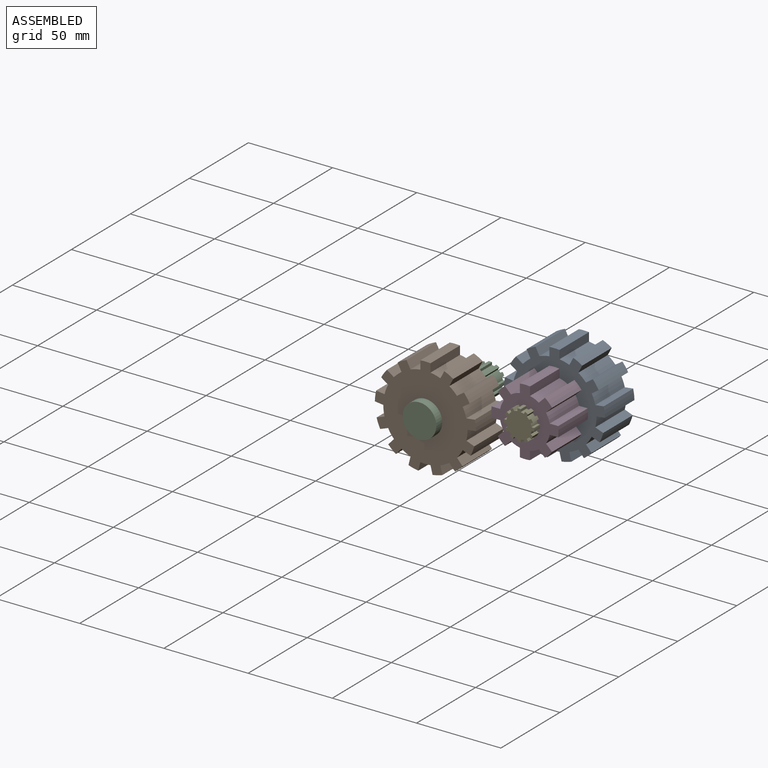
[diagram: assembled view]
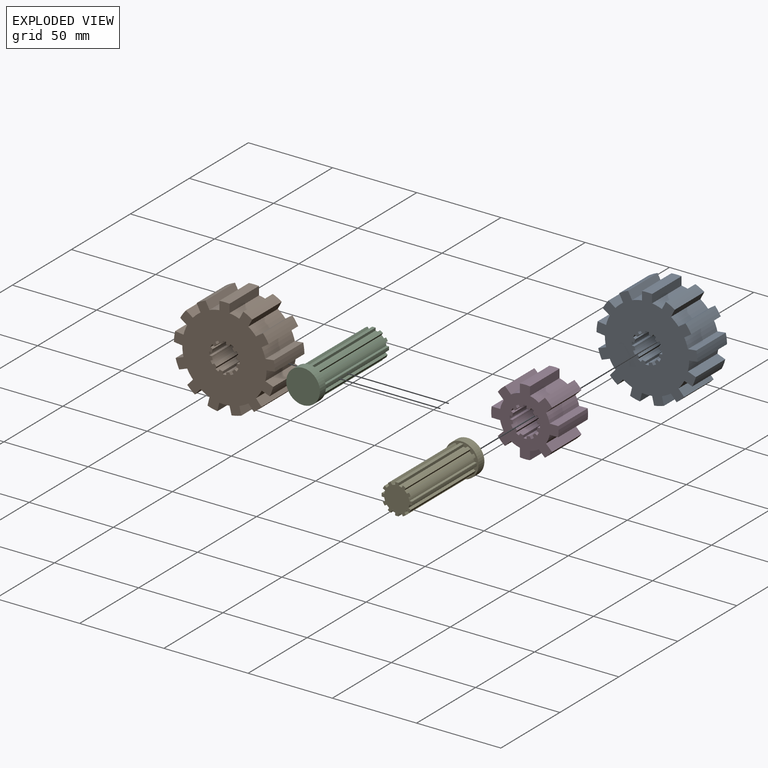
[diagram: exploded view]
GUIDED TOUR — MATED ASSEMBLY (Onshape document 391419834dc7ba93fd07b7cd, AutoMate assembly 391419834dc7ba93fd07b7cd_708b872a6b882f5753964bcb_778fc73220e6f7a36c3dd1d7_default)

This assembly has 5 components, labeled P0..P4 below (a component is one placed occurrence of a part; the same part can appear more than once), held together by 3 mates. A mate is a constraint between two components; its type names the relative motion it leaves free:
  FASTENED — locks the two components together rigidly (no relative motion).
Axis/direction vectors are unit vectors and 'through' points are millimeter coordinates, both in the assembly's world frame.

MATES
  1. FASTENED "Fastened 1": P0 <-> P4, direction (0.000, 1.000, 0.000) through (3.16, 30.12, 6.80) mm
  2. FASTENED "Fastened 2": P3 <-> P0, direction (0.000, 1.000, 0.000) through (3.16, 5.12, 6.80) mm
  3. FASTENED "Fastened 1": P1 <-> P2, direction (0.000, -1.000, 0.000) through (-58.75, -15.80, -8.94) mm

ASSEMBLY ORDER
  1. P3 — the base component [order verified]
  2. P4 [order verified]
  3. P0 [order verified]
  4. P1 [order verified]
  5. P2 [order verified]
Order-tag legend:
  [order verified] — this step's position reverses a verified removal order: the component was checked to insert without passing through the ones already placed.

Of the 5 components, 5 carry the full construction recipe — the FeatureScript program that regenerates the part's solid from scratch; the rest are supplied as boundary geometry only.
Each toured component is shown spotlighted twice — in the assembled view, then in the exploded view, where a leader line traces a displaced component back to its assembled socket (saturated green if recipe-attached, orange if geometry-only; every other component desaturated gray) — followed by its recipe or geometry summary and the mates that hold it.
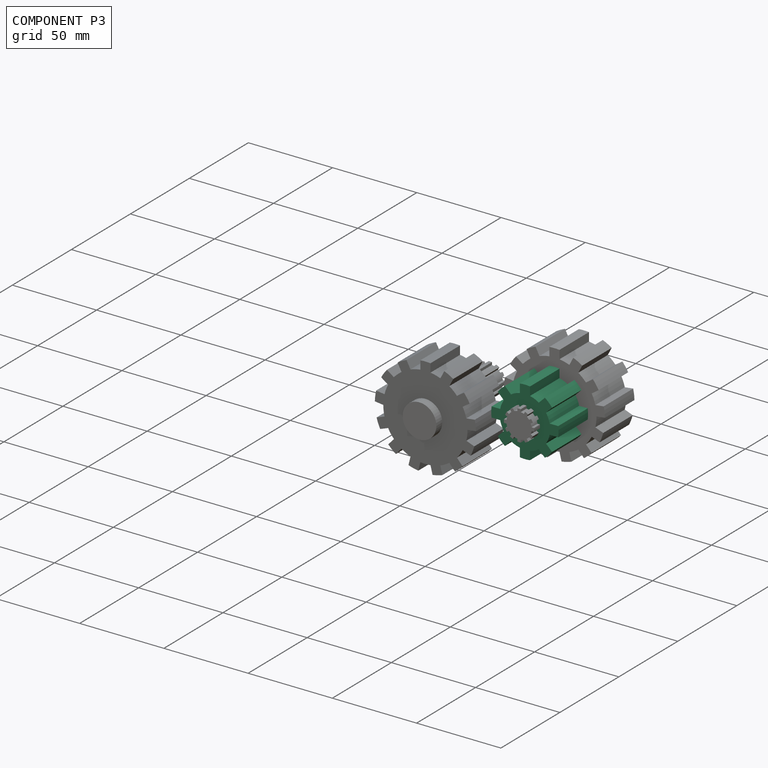
[diagram: component P3 — assembled]
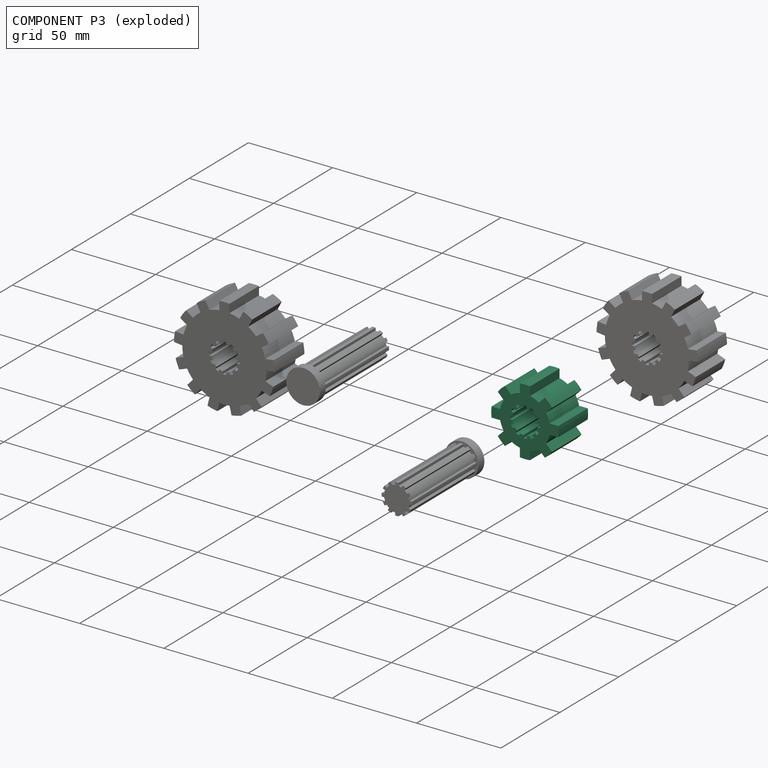
[diagram: component P3 — exploded]
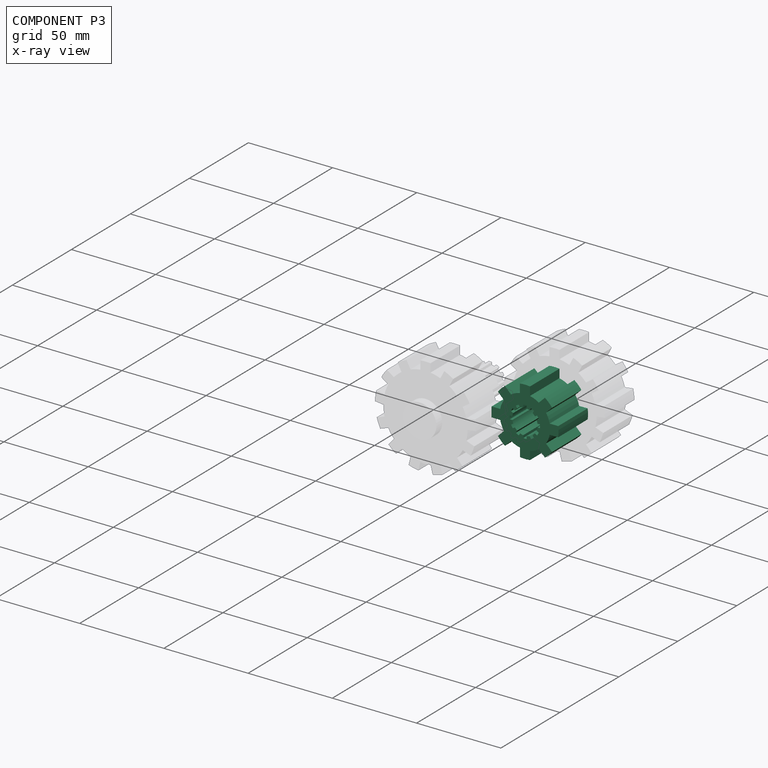
[diagram: component P3 — x-ray view]
COMPONENT P3 — recipe-attached (CADFS 00593386, mesh-verified: the recipe's output STEP matches this component's geometry to below the mesh-comparison resolution (tessellation chordal tolerance ~0.0927 mm)).
Held by: FASTENED mate "Fastened 2" to P0.
Construction recipe (FeatureScript — the CAD program that rebuilds this solid; sketch coordinates are in the units given by the * unit suffixes, e.g. mm):

FeatureScript 1511;
import(path : "onshape/std/geometry.fs", version : "1511.0");
import(path : "onshape/std/common.fs", version : "1511.0");
const mm = millimeter;
const VERTEX = EntityType.VERTEX;
const EDGE = EntityType.EDGE;
const FACE = EntityType.FACE;
const BODY = EntityType.BODY;
function v(x, y){return vector(x, y);}
function OD(order){return orderDisambiguation(order);}
function OSD(set){return originalSetDisambiguation(set);}
function TD(topology){return topologyDisambiguation(topology);}
function TDD(query){return trueDependencyDisambiguation(query);}
function sQuery(a, b, c) {return sketchEntityQuery(a, b, c);}

annotation { "Feature Type Name" : "Feature", "Feature Type Description" : "" }
export const myFeature = defineFeature(function(context is Context, id is Id, definition is map)
    precondition{}
    {
        {
            var Q0;
            Q0=qCreatedBy(makeId("Front.planeOp"),FACE);
            var sketch = newSketch(context, id + "F0", { "sketchPlane" : qUnion([Q0])});
            skArc(sketch, "E0", {"start": v(-4.58, 5.94) * mm, "mid": v(-5.3, 5.3) * mm, "end": v(-5.94, 4.58) * mm});
            skArc(sketch, "E1", {"start": v(1, 8.94) * mm, "mid": v(0, 9) * mm, "end": v(-1, 8.94) * mm});
            skLineSegment(sketch, "E2", {"start": v(-1, 8.94) * mm, "end": v(-1, 7.43) * mm});
            skLineSegment(sketch, "E3", {"start": v(1, 7.43) * mm, "end": v(1, 8.94) * mm});
            skArc(sketch, "E4.1.0", {"start": v(-3.6, 8.25) * mm, "mid": v(-4.5, 7.8) * mm, "end": v(-5.34, 7.25) * mm});
            skLineSegment(sketch, "E4.1.1", {"start": v(-2.85, 6.94) * mm, "end": v(-3.6, 8.25) * mm});
            skLineSegment(sketch, "E4.1.2", {"start": v(-5.34, 7.25) * mm, "end": v(-4.58, 5.94) * mm});
            skArc(sketch, "E4.2.0", {"start": v(-7.25, 5.34) * mm, "mid": v(-7.8, 4.5) * mm, "end": v(-8.25, 3.6) * mm});
            skLineSegment(sketch, "E4.2.1", {"start": v(-5.94, 4.58) * mm, "end": v(-7.25, 5.34) * mm});
            skLineSegment(sketch, "E4.2.2", {"start": v(-8.25, 3.6) * mm, "end": v(-6.94, 2.85) * mm});
            skArc(sketch, "E4.3.0", {"start": v(-8.94, 1) * mm, "mid": v(-9, 0) * mm, "end": v(-8.94, -1) * mm});
            skLineSegment(sketch, "E4.3.1", {"start": v(-7.43, 1) * mm, "end": v(-8.94, 1) * mm});
            skLineSegment(sketch, "E4.3.2", {"start": v(-8.94, -1) * mm, "end": v(-7.43, -1) * mm});
            skArc(sketch, "E4.4.0", {"start": v(-8.25, -3.6) * mm, "mid": v(-7.8, -4.5) * mm, "end": v(-7.25, -5.34) * mm});
            skLineSegment(sketch, "E4.4.1", {"start": v(-6.94, -2.85) * mm, "end": v(-8.25, -3.6) * mm});
            skLineSegment(sketch, "E4.4.2", {"start": v(-7.25, -5.34) * mm, "end": v(-5.94, -4.58) * mm});
            skArc(sketch, "E4.5.0", {"start": v(-5.34, -7.25) * mm, "mid": v(-4.5, -7.8) * mm, "end": v(-3.6, -8.25) * mm});
            skLineSegment(sketch, "E4.5.1", {"start": v(-4.58, -5.94) * mm, "end": v(-5.34, -7.25) * mm});
            skLineSegment(sketch, "E4.5.2", {"start": v(-3.6, -8.25) * mm, "end": v(-2.85, -6.94) * mm});
            skArc(sketch, "E4.6.0", {"start": v(-1, -8.94) * mm, "mid": v(0, -9) * mm, "end": v(1, -8.94) * mm});
            skLineSegment(sketch, "E4.6.1", {"start": v(-1, -7.43) * mm, "end": v(-1, -8.94) * mm});
            skLineSegment(sketch, "E4.6.2", {"start": v(1, -8.94) * mm, "end": v(1, -7.43) * mm});
            skArc(sketch, "E4.7.0", {"start": v(3.6, -8.25) * mm, "mid": v(4.5, -7.8) * mm, "end": v(5.34, -7.25) * mm});
            skLineSegment(sketch, "E4.7.1", {"start": v(2.85, -6.94) * mm, "end": v(3.6, -8.25) * mm});
            skLineSegment(sketch, "E4.7.2", {"start": v(5.34, -7.25) * mm, "end": v(4.58, -5.94) * mm});
            skArc(sketch, "E4.8.0", {"start": v(7.25, -5.34) * mm, "mid": v(7.8, -4.5) * mm, "end": v(8.25, -3.6) * mm});
            skLineSegment(sketch, "E4.8.1", {"start": v(5.94, -4.58) * mm, "end": v(7.25, -5.34) * mm});
            skLineSegment(sketch, "E4.8.2", {"start": v(8.25, -3.6) * mm, "end": v(6.94, -2.85) * mm});
            skArc(sketch, "E4.9.0", {"start": v(8.94, -1) * mm, "mid": v(9, 0) * mm, "end": v(8.94, 1) * mm});
            skLineSegment(sketch, "E4.9.1", {"start": v(7.43, -1) * mm, "end": v(8.94, -1) * mm});
            skLineSegment(sketch, "E4.9.2", {"start": v(8.94, 1) * mm, "end": v(7.43, 1) * mm});
            skArc(sketch, "E4.10.0", {"start": v(8.25, 3.6) * mm, "mid": v(7.8, 4.5) * mm, "end": v(7.25, 5.34) * mm});
            skLineSegment(sketch, "E4.10.1", {"start": v(6.94, 2.85) * mm, "end": v(8.25, 3.6) * mm});
            skLineSegment(sketch, "E4.10.2", {"start": v(7.25, 5.34) * mm, "end": v(5.94, 4.58) * mm});
            skArc(sketch, "E4.11.0", {"start": v(5.34, 7.25) * mm, "mid": v(4.5, 7.8) * mm, "end": v(3.6, 8.25) * mm});
            skLineSegment(sketch, "E4.11.1", {"start": v(4.58, 5.94) * mm, "end": v(5.34, 7.25) * mm});
            skLineSegment(sketch, "E4.11.2", {"start": v(3.6, 8.25) * mm, "end": v(2.85, 6.94) * mm});
            skArc(sketch, "E5.trimOffspring", {"start": v(-1, 7.43) * mm, "mid": v(-1.94, 7.24) * mm, "end": v(-2.85, 6.94) * mm});
            skArc(sketch, "E6.trimOffspring", {"start": v(2.85, 6.94) * mm, "mid": v(1.94, 7.24) * mm, "end": v(1, 7.43) * mm});
            skArc(sketch, "E7.trimOffspring", {"start": v(5.94, 4.58) * mm, "mid": v(5.3, 5.3) * mm, "end": v(4.58, 5.94) * mm});
            skArc(sketch, "E8.trimOffspring", {"start": v(7.43, 1) * mm, "mid": v(7.24, 1.94) * mm, "end": v(6.94, 2.85) * mm});
            skArc(sketch, "E9.trimOffspring", {"start": v(6.94, -2.85) * mm, "mid": v(7.24, -1.94) * mm, "end": v(7.43, -1) * mm});
            skArc(sketch, "E10.trimOffspring", {"start": v(4.58, -5.94) * mm, "mid": v(5.3, -5.3) * mm, "end": v(5.94, -4.58) * mm});
            skArc(sketch, "E11.trimOffspring", {"start": v(1, -7.43) * mm, "mid": v(1.94, -7.24) * mm, "end": v(2.85, -6.94) * mm});
            skArc(sketch, "E12.trimOffspring", {"start": v(-2.85, -6.94) * mm, "mid": v(-1.94, -7.24) * mm, "end": v(-1, -7.43) * mm});
            skArc(sketch, "E13.trimOffspring", {"start": v(-5.94, -4.58) * mm, "mid": v(-5.3, -5.3) * mm, "end": v(-4.58, -5.94) * mm});
            skArc(sketch, "E14.trimOffspring", {"start": v(-7.43, -1) * mm, "mid": v(-7.24, -1.94) * mm, "end": v(-6.94, -2.85) * mm});
            skArc(sketch, "E15.trimOffspring", {"start": v(-6.94, 2.85) * mm, "mid": v(-7.24, 1.94) * mm, "end": v(-7.43, 1) * mm});
            skSolve(sketch);
        }
        {
            var Q0;
            Q0=qCreatedBy(makeId("Front.planeOp"),FACE);
            var sketch = newSketch(context, id + "F1", { "sketchPlane" : qUnion([Q0])});
            skCircle(sketch, "E16", {"center": v(0, 0) * mm, "radius": 15 * mm});
            skLineSegment(sketch, "E17", {"start": v(-3, 19.77) * mm, "end": v(-3, 14.7) * mm});
            skLineSegment(sketch, "E18", {"start": v(3, 14.7) * mm, "end": v(3, 19.77) * mm});
            skArc(sketch, "E19", {"start": v(3, 19.77) * mm, "mid": v(0, 20) * mm, "end": v(-3, 19.77) * mm});
            skArc(sketch, "E20.1.0", {"start": v(-11.86, 16.1) * mm, "mid": v(-14.14, 14.14) * mm, "end": v(-16.1, 11.86) * mm});
            skLineSegment(sketch, "E20.1.1", {"start": v(-8.27, 12.51) * mm, "end": v(-11.86, 16.1) * mm});
            skLineSegment(sketch, "E20.1.2", {"start": v(-16.1, 11.86) * mm, "end": v(-12.51, 8.27) * mm});
            skArc(sketch, "E20.2.0", {"start": v(-19.77, 3) * mm, "mid": v(-20, 0) * mm, "end": v(-19.77, -3) * mm});
            skLineSegment(sketch, "E20.2.1", {"start": v(-14.7, 3) * mm, "end": v(-19.77, 3) * mm});
            skLineSegment(sketch, "E20.2.2", {"start": v(-19.77, -3) * mm, "end": v(-14.7, -3) * mm});
            skArc(sketch, "E21.3.3.0", {"start": v(-16.1, -11.86) * mm, "mid": v(-14.14, -14.14) * mm, "end": v(-11.86, -16.1) * mm});
            skLineSegment(sketch, "E21.4.3.0", {"start": v(-12.51, -8.27) * mm, "end": v(-16.1, -11.86) * mm});
            skLineSegment(sketch, "E21.7.3.0", {"start": v(-11.86, -16.1) * mm, "end": v(-8.27, -12.51) * mm});
            skArc(sketch, "E21.3.4.0", {"start": v(-3, -19.77) * mm, "mid": v(0, -20) * mm, "end": v(3, -19.77) * mm});
            skLineSegment(sketch, "E21.4.4.0", {"start": v(-3, -14.7) * mm, "end": v(-3, -19.77) * mm});
            skLineSegment(sketch, "E21.7.4.0", {"start": v(3, -19.77) * mm, "end": v(3, -14.7) * mm});
            skArc(sketch, "E21.3.5.0", {"start": v(11.86, -16.1) * mm, "mid": v(14.14, -14.14) * mm, "end": v(16.1, -11.86) * mm});
            skLineSegment(sketch, "E21.4.5.0", {"start": v(8.27, -12.51) * mm, "end": v(11.86, -16.1) * mm});
            skLineSegment(sketch, "E21.7.5.0", {"start": v(16.1, -11.86) * mm, "end": v(12.51, -8.27) * mm});
            skArc(sketch, "E22.3.6.0", {"start": v(19.77, -3) * mm, "mid": v(20, 0) * mm, "end": v(19.77, 3) * mm});
            skLineSegment(sketch, "E22.4.6.0", {"start": v(14.7, -3) * mm, "end": v(19.77, -3) * mm});
            skLineSegment(sketch, "E22.7.6.0", {"start": v(19.77, 3) * mm, "end": v(14.7, 3) * mm});
            skArc(sketch, "E23.3.7.0", {"start": v(16.1, 11.86) * mm, "mid": v(14.14, 14.14) * mm, "end": v(11.86, 16.1) * mm});
            skLineSegment(sketch, "E23.4.7.0", {"start": v(12.51, 8.27) * mm, "end": v(16.1, 11.86) * mm});
            skLineSegment(sketch, "E23.7.7.0", {"start": v(11.86, 16.1) * mm, "end": v(8.27, 12.51) * mm});
            skSolve(sketch);
        }
        {
            var Q0;
            {var subQ0=sQuery(id+"F1.wireOp",EDGE,"E16");var subQ8=makeQuery(id+"F1.imprint","INTERSECT",VERTEX,{"derivedFrom":[subQ0,sQuery(id+"F1.wireOp",EDGE,"E22.7.6.0")]});Q0=makeQuery(id+"F1.imprint","IMPRINT",FACE,{"disambiguationData":[TD([[makeQuery(id+"F1.imprint","IMPRINT",EDGE,{"disambiguationData":[TD([[subQ8,-1.0]])],"derivedFrom":subQ0}),1.0]])]});}
            var Q1;
            Q1=makeQuery(id+"F1.imprint","IMPRINT",FACE,{"disambiguationData":[TD([[makeQuery(id+"F1.imprint","IMPRINT",EDGE,{"derivedFrom":sQuery(id+"F1.wireOp",EDGE,"E20.1.0")}),1.0]])]});
            var Q2;
            Q2=makeQuery(id+"F1.imprint","IMPRINT",FACE,{"disambiguationData":[TD([[makeQuery(id+"F1.imprint","IMPRINT",EDGE,{"derivedFrom":sQuery(id+"F1.wireOp",EDGE,"E20.2.0")}),1.0]])]});
            var Q3;
            Q3=makeQuery(id+"F1.imprint","IMPRINT",FACE,{"disambiguationData":[TD([[makeQuery(id+"F1.imprint","IMPRINT",EDGE,{"derivedFrom":sQuery(id+"F1.wireOp",EDGE,"E21.3.3.0")}),1.0]])]});
            var Q4;
            Q4=makeQuery(id+"F1.imprint","IMPRINT",FACE,{"disambiguationData":[TD([[makeQuery(id+"F1.imprint","IMPRINT",EDGE,{"derivedFrom":sQuery(id+"F1.wireOp",EDGE,"E21.3.4.0")}),1.0]])]});
            var Q5;
            Q5=makeQuery(id+"F1.imprint","IMPRINT",FACE,{"disambiguationData":[TD([[makeQuery(id+"F1.imprint","IMPRINT",EDGE,{"derivedFrom":sQuery(id+"F1.wireOp",EDGE,"E21.3.5.0")}),1.0]])]});
            var Q6;
            Q6=makeQuery(id+"F1.imprint","IMPRINT",FACE,{"disambiguationData":[TD([[makeQuery(id+"F1.imprint","IMPRINT",EDGE,{"derivedFrom":sQuery(id+"F1.wireOp",EDGE,"E22.3.6.0")}),1.0]])]});
            var Q7;
            Q7=makeQuery(id+"F1.imprint","IMPRINT",FACE,{"disambiguationData":[TD([[makeQuery(id+"F1.imprint","IMPRINT",EDGE,{"derivedFrom":sQuery(id+"F1.wireOp",EDGE,"E23.3.7.0")}),1.0]])]});
            var Q8;
            {var subQ0=sQuery(id+"F1.wireOp",EDGE,"E17");Q8=makeQuery(id+"F1.imprint","IMPRINT",FACE,{"disambiguationData":[TD([[makeQuery(id+"F1.imprint","IMPRINT",EDGE,{"derivedFrom":subQ0}),1.0]])]});}
            extrude(context, id + "F2", {"entities" : qUnion([Q0, Q1, Q2, Q3, Q4, Q5, Q6, Q7, Q8]), "depth" : 25 * mm, "offsetDistance" : 25 * mm});
        }
        {
            var Q0;
            Q0=makeQuery(id+"F0.imprint","IMPRINT",FACE,{"disambiguationData":[TD([[makeQuery(id+"F0.imprint","IMPRINT",EDGE,{"derivedFrom":sQuery(id+"F0.wireOp",EDGE,"E0")}),1.0]])]});
            extrude(context, id + "F3", {"entities" : qUnion([Q0]), "operationType" : NewBodyOperationType.REMOVE, "depth" : 25 * mm, "offsetDistance" : 25 * mm});
        }
    });
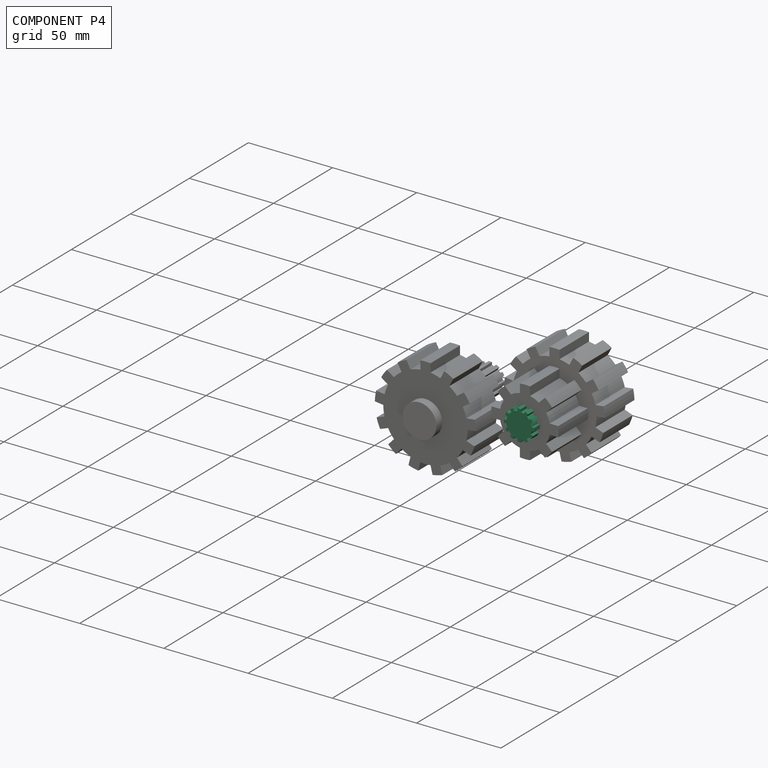
[diagram: component P4 — assembled]
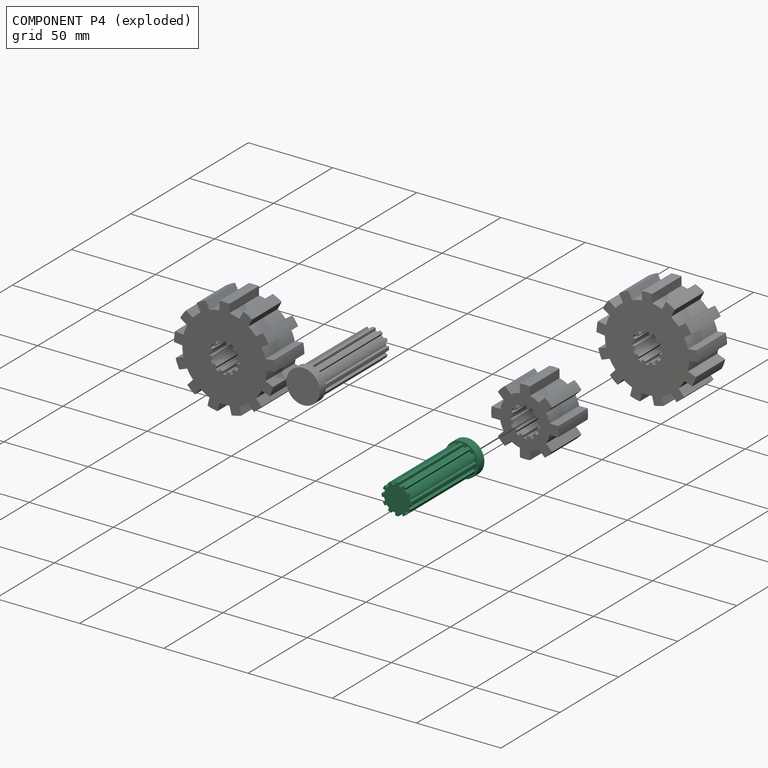
[diagram: component P4 — exploded]
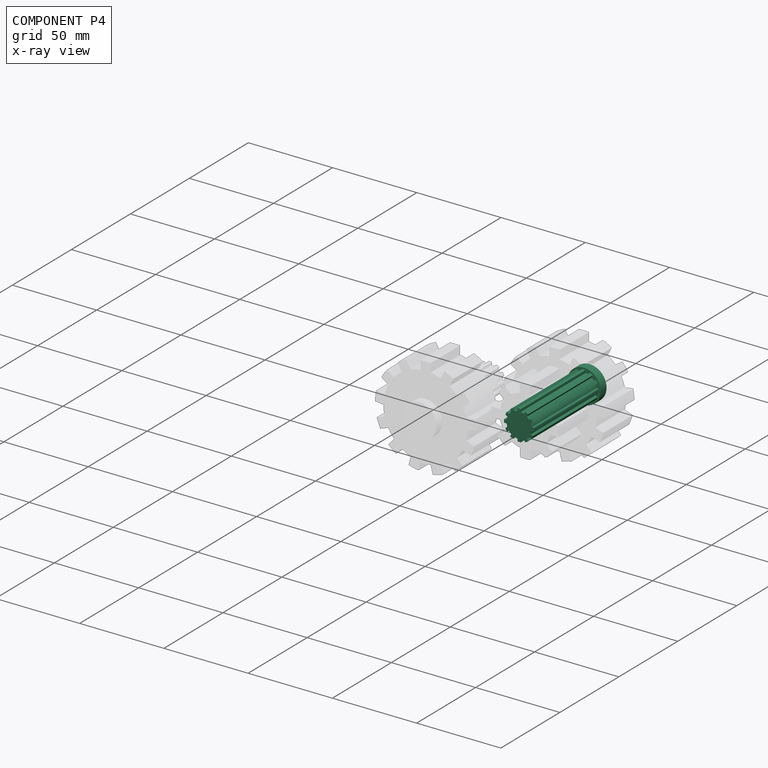
[diagram: component P4 — x-ray view]
COMPONENT P4 — same part as P2 (CADFS 00593384); its construction recipe is shown at P2.
Held by: FASTENED mate "Fastened 1" to P0.
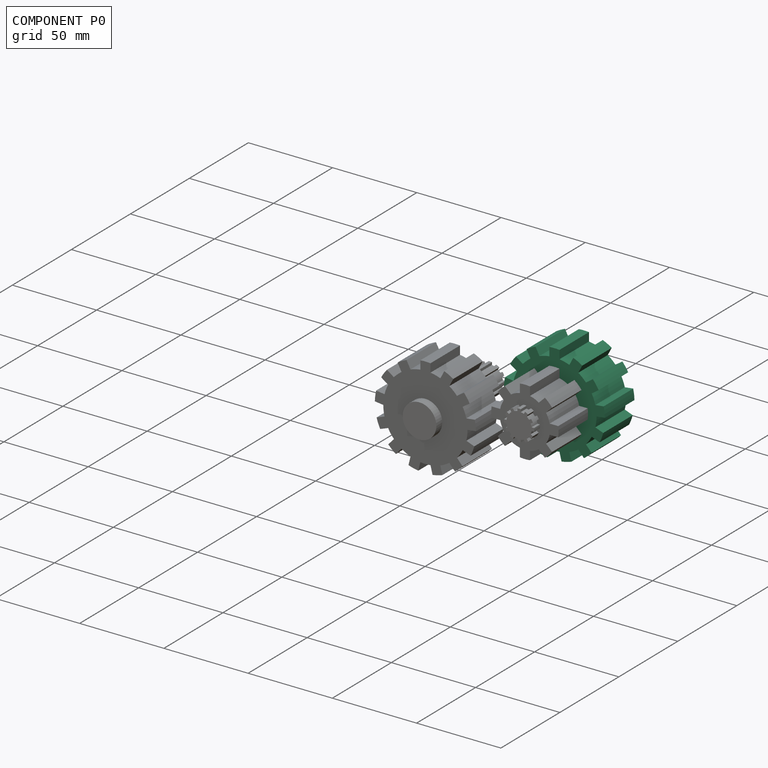
[diagram: component P0 — assembled]
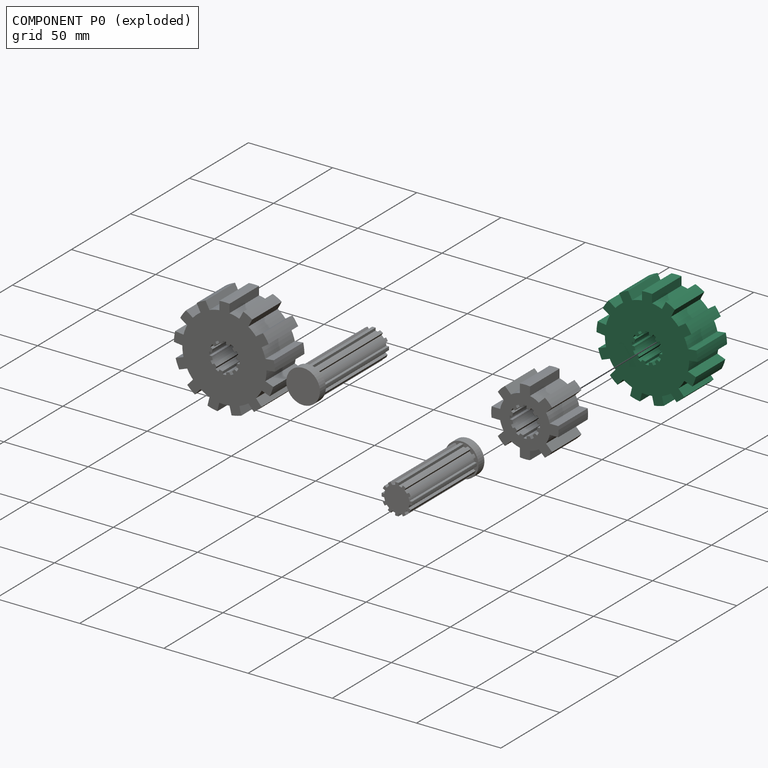
[diagram: component P0 — exploded]
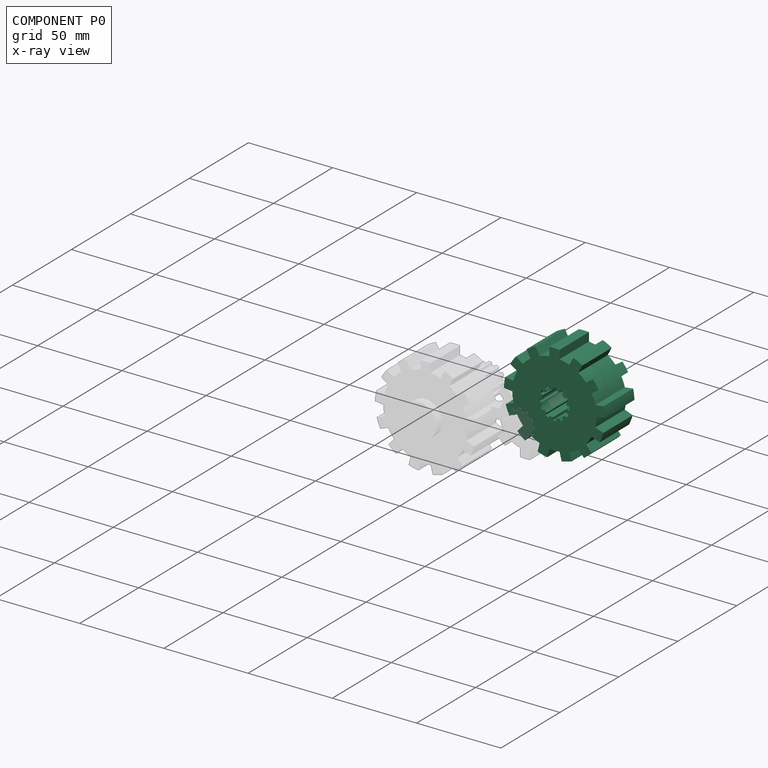
[diagram: component P0 — x-ray view]
COMPONENT P0 — recipe-attached (CADFS 00593385, mesh-verified: the recipe's output STEP matches this component's geometry to below the mesh-comparison resolution (tessellation chordal tolerance ~0.132 mm)).
Held by: FASTENED mate "Fastened 1" to P4; FASTENED mate "Fastened 2" to P3.
Construction recipe (FeatureScript — the CAD program that rebuilds this solid; sketch coordinates are in the units given by the * unit suffixes, e.g. mm):

FeatureScript 1511;
import(path : "onshape/std/geometry.fs", version : "1511.0");
import(path : "onshape/std/common.fs", version : "1511.0");
const mm = millimeter;
const VERTEX = EntityType.VERTEX;
const EDGE = EntityType.EDGE;
const FACE = EntityType.FACE;
const BODY = EntityType.BODY;
function v(x, y){return vector(x, y);}
function OD(order){return orderDisambiguation(order);}
function OSD(set){return originalSetDisambiguation(set);}
function TD(topology){return topologyDisambiguation(topology);}
function TDD(query){return trueDependencyDisambiguation(query);}
function sQuery(a, b, c) {return sketchEntityQuery(a, b, c);}

annotation { "Feature Type Name" : "Feature", "Feature Type Description" : "" }
export const myFeature = defineFeature(function(context is Context, id is Id, definition is map)
    precondition{}
    {
        {
            var Q0;
            Q0=qCreatedBy(makeId("Front.planeOp"),FACE);
            var sketch = newSketch(context, id + "F0", { "sketchPlane" : qUnion([Q0])});
            skArc(sketch, "E0", {"start": v(-4.58, 5.94) * mm, "mid": v(-5.3, 5.3) * mm, "end": v(-5.94, 4.58) * mm});
            skArc(sketch, "E1", {"start": v(1, 8.94) * mm, "mid": v(0, 9) * mm, "end": v(-1, 8.94) * mm});
            skLineSegment(sketch, "E2", {"start": v(-1, 8.94) * mm, "end": v(-1, 7.43) * mm});
            skLineSegment(sketch, "E3", {"start": v(1, 7.43) * mm, "end": v(1, 8.94) * mm});
            skArc(sketch, "E4.1.0", {"start": v(-3.6, 8.25) * mm, "mid": v(-4.5, 7.8) * mm, "end": v(-5.34, 7.25) * mm});
            skLineSegment(sketch, "E4.1.1", {"start": v(-2.85, 6.94) * mm, "end": v(-3.6, 8.25) * mm});
            skLineSegment(sketch, "E4.1.2", {"start": v(-5.34, 7.25) * mm, "end": v(-4.58, 5.94) * mm});
            skArc(sketch, "E4.2.0", {"start": v(-7.25, 5.34) * mm, "mid": v(-7.8, 4.5) * mm, "end": v(-8.25, 3.6) * mm});
            skLineSegment(sketch, "E4.2.1", {"start": v(-5.94, 4.58) * mm, "end": v(-7.25, 5.34) * mm});
            skLineSegment(sketch, "E4.2.2", {"start": v(-8.25, 3.6) * mm, "end": v(-6.94, 2.85) * mm});
            skArc(sketch, "E4.3.0", {"start": v(-8.94, 1) * mm, "mid": v(-9, 0) * mm, "end": v(-8.94, -1) * mm});
            skLineSegment(sketch, "E4.3.1", {"start": v(-7.43, 1) * mm, "end": v(-8.94, 1) * mm});
            skLineSegment(sketch, "E4.3.2", {"start": v(-8.94, -1) * mm, "end": v(-7.43, -1) * mm});
            skArc(sketch, "E4.4.0", {"start": v(-8.25, -3.6) * mm, "mid": v(-7.8, -4.5) * mm, "end": v(-7.25, -5.34) * mm});
            skLineSegment(sketch, "E4.4.1", {"start": v(-6.94, -2.85) * mm, "end": v(-8.25, -3.6) * mm});
            skLineSegment(sketch, "E4.4.2", {"start": v(-7.25, -5.34) * mm, "end": v(-5.94, -4.58) * mm});
            skArc(sketch, "E4.5.0", {"start": v(-5.34, -7.25) * mm, "mid": v(-4.5, -7.8) * mm, "end": v(-3.6, -8.25) * mm});
            skLineSegment(sketch, "E4.5.1", {"start": v(-4.58, -5.94) * mm, "end": v(-5.34, -7.25) * mm});
            skLineSegment(sketch, "E4.5.2", {"start": v(-3.6, -8.25) * mm, "end": v(-2.85, -6.94) * mm});
            skArc(sketch, "E4.6.0", {"start": v(-1, -8.94) * mm, "mid": v(0, -9) * mm, "end": v(1, -8.94) * mm});
            skLineSegment(sketch, "E4.6.1", {"start": v(-1, -7.43) * mm, "end": v(-1, -8.94) * mm});
            skLineSegment(sketch, "E4.6.2", {"start": v(1, -8.94) * mm, "end": v(1, -7.43) * mm});
            skArc(sketch, "E4.7.0", {"start": v(3.6, -8.25) * mm, "mid": v(4.5, -7.8) * mm, "end": v(5.34, -7.25) * mm});
            skLineSegment(sketch, "E4.7.1", {"start": v(2.85, -6.94) * mm, "end": v(3.6, -8.25) * mm});
            skLineSegment(sketch, "E4.7.2", {"start": v(5.34, -7.25) * mm, "end": v(4.58, -5.94) * mm});
            skArc(sketch, "E4.8.0", {"start": v(7.25, -5.34) * mm, "mid": v(7.8, -4.5) * mm, "end": v(8.25, -3.6) * mm});
            skLineSegment(sketch, "E4.8.1", {"start": v(5.94, -4.58) * mm, "end": v(7.25, -5.34) * mm});
            skLineSegment(sketch, "E4.8.2", {"start": v(8.25, -3.6) * mm, "end": v(6.94, -2.85) * mm});
            skArc(sketch, "E4.9.0", {"start": v(8.94, -1) * mm, "mid": v(9, 0) * mm, "end": v(8.94, 1) * mm});
            skLineSegment(sketch, "E4.9.1", {"start": v(7.43, -1) * mm, "end": v(8.94, -1) * mm});
            skLineSegment(sketch, "E4.9.2", {"start": v(8.94, 1) * mm, "end": v(7.43, 1) * mm});
            skArc(sketch, "E4.10.0", {"start": v(8.25, 3.6) * mm, "mid": v(7.8, 4.5) * mm, "end": v(7.25, 5.34) * mm});
            skLineSegment(sketch, "E4.10.1", {"start": v(6.94, 2.85) * mm, "end": v(8.25, 3.6) * mm});
            skLineSegment(sketch, "E4.10.2", {"start": v(7.25, 5.34) * mm, "end": v(5.94, 4.58) * mm});
            skArc(sketch, "E4.11.0", {"start": v(5.34, 7.25) * mm, "mid": v(4.5, 7.8) * mm, "end": v(3.6, 8.25) * mm});
            skLineSegment(sketch, "E4.11.1", {"start": v(4.58, 5.94) * mm, "end": v(5.34, 7.25) * mm});
            skLineSegment(sketch, "E4.11.2", {"start": v(3.6, 8.25) * mm, "end": v(2.85, 6.94) * mm});
            skArc(sketch, "E5.trimOffspring", {"start": v(-1, 7.43) * mm, "mid": v(-1.94, 7.24) * mm, "end": v(-2.85, 6.94) * mm});
            skArc(sketch, "E6.trimOffspring", {"start": v(2.85, 6.94) * mm, "mid": v(1.94, 7.24) * mm, "end": v(1, 7.43) * mm});
            skArc(sketch, "E7.trimOffspring", {"start": v(5.94, 4.58) * mm, "mid": v(5.3, 5.3) * mm, "end": v(4.58, 5.94) * mm});
            skArc(sketch, "E8.trimOffspring", {"start": v(7.43, 1) * mm, "mid": v(7.24, 1.94) * mm, "end": v(6.94, 2.85) * mm});
            skArc(sketch, "E9.trimOffspring", {"start": v(6.94, -2.85) * mm, "mid": v(7.24, -1.94) * mm, "end": v(7.43, -1) * mm});
            skArc(sketch, "E10.trimOffspring", {"start": v(4.58, -5.94) * mm, "mid": v(5.3, -5.3) * mm, "end": v(5.94, -4.58) * mm});
            skArc(sketch, "E11.trimOffspring", {"start": v(1, -7.43) * mm, "mid": v(1.94, -7.24) * mm, "end": v(2.85, -6.94) * mm});
            skArc(sketch, "E12.trimOffspring", {"start": v(-2.85, -6.94) * mm, "mid": v(-1.94, -7.24) * mm, "end": v(-1, -7.43) * mm});
            skArc(sketch, "E13.trimOffspring", {"start": v(-5.94, -4.58) * mm, "mid": v(-5.3, -5.3) * mm, "end": v(-4.58, -5.94) * mm});
            skArc(sketch, "E14.trimOffspring", {"start": v(-7.43, -1) * mm, "mid": v(-7.24, -1.94) * mm, "end": v(-6.94, -2.85) * mm});
            skArc(sketch, "E15.trimOffspring", {"start": v(-6.94, 2.85) * mm, "mid": v(-7.24, 1.94) * mm, "end": v(-7.43, 1) * mm});
            skArc(sketch, "E16", {"start": v(-14.2, 20.58) * mm, "mid": v(-16.58, 18.71) * mm, "end": v(-18.72, 16.57) * mm});
            skLineSegment(sketch, "E17", {"start": v(-3, 29.85) * mm, "end": v(-3, 24.82) * mm});
            skLineSegment(sketch, "E18", {"start": v(3, 24.82) * mm, "end": v(3, 29.85) * mm});
            skArc(sketch, "E19", {"start": v(3, 29.85) * mm, "mid": v(0, 30) * mm, "end": v(-3, 29.85) * mm});
            skLineSegment(sketch, "E20.1.0", {"start": v(-16.53, 25.04) * mm, "end": v(-14.2, 20.58) * mm});
            skArc(sketch, "E20.1.1", {"start": v(-11.22, 27.82) * mm, "mid": v(-13.94, 26.56) * mm, "end": v(-16.53, 25.04) * mm});
            skLineSegment(sketch, "E20.1.2", {"start": v(-8.88, 23.37) * mm, "end": v(-11.22, 27.82) * mm});
            skLineSegment(sketch, "E20.2.0", {"start": v(-26.27, 14.49) * mm, "end": v(-22.13, 11.63) * mm});
            skArc(sketch, "E20.2.1", {"start": v(-22.86, 19.43) * mm, "mid": v(-24.69, 17.04) * mm, "end": v(-26.27, 14.49) * mm});
            skLineSegment(sketch, "E20.2.2", {"start": v(-18.72, 16.57) * mm, "end": v(-22.86, 19.43) * mm});
            skLineSegment(sketch, "E20.3.0", {"start": v(-30, 0.62) * mm, "end": v(-25, 0.01) * mm});
            skArc(sketch, "E20.3.1", {"start": v(-29.27, 6.58) * mm, "mid": v(-29.78, 3.62) * mm, "end": v(-30, 0.62) * mm});
            skLineSegment(sketch, "E20.3.2", {"start": v(-24.28, 5.97) * mm, "end": v(-29.27, 6.58) * mm});
            skLineSegment(sketch, "E20.4.0", {"start": v(-26.85, -13.39) * mm, "end": v(-22.14, -11.6) * mm});
            skArc(sketch, "E20.4.1", {"start": v(-28.97, -7.78) * mm, "mid": v(-28.05, -10.64) * mm, "end": v(-26.85, -13.39) * mm});
            skLineSegment(sketch, "E20.4.2", {"start": v(-24.27, -6) * mm, "end": v(-28.97, -7.78) * mm});
            skLineSegment(sketch, "E20.5.0", {"start": v(-17.55, -24.33) * mm, "end": v(-14.21, -20.57) * mm});
            skArc(sketch, "E20.5.1", {"start": v(-22.04, -20.35) * mm, "mid": v(-19.9, -22.46) * mm, "end": v(-17.55, -24.33) * mm});
            skLineSegment(sketch, "E20.5.2", {"start": v(-18.7, -16.59) * mm, "end": v(-22.04, -20.35) * mm});
            skLineSegment(sketch, "E20.6.0", {"start": v(-4.23, -29.7) * mm, "end": v(-3.03, -24.82) * mm});
            skArc(sketch, "E20.6.1", {"start": v(-10.06, -28.26) * mm, "mid": v(-7.18, -29.13) * mm, "end": v(-4.23, -29.7) * mm});
            skLineSegment(sketch, "E20.6.2", {"start": v(-8.85, -23.38) * mm, "end": v(-10.06, -28.26) * mm});
            skLineSegment(sketch, "E20.7.0", {"start": v(10.06, -28.26) * mm, "end": v(8.85, -23.38) * mm});
            skArc(sketch, "E20.7.1", {"start": v(4.23, -29.7) * mm, "mid": v(7.18, -29.13) * mm, "end": v(10.06, -28.26) * mm});
            skLineSegment(sketch, "E20.7.2", {"start": v(3.03, -24.82) * mm, "end": v(4.23, -29.7) * mm});
            skLineSegment(sketch, "E20.8.0", {"start": v(22.04, -20.35) * mm, "end": v(18.7, -16.59) * mm});
            skArc(sketch, "E20.8.1", {"start": v(17.55, -24.33) * mm, "mid": v(19.9, -22.46) * mm, "end": v(22.04, -20.35) * mm});
            skLineSegment(sketch, "E20.8.2", {"start": v(14.21, -20.57) * mm, "end": v(17.55, -24.33) * mm});
            skLineSegment(sketch, "E20.9.0", {"start": v(28.97, -7.78) * mm, "end": v(24.27, -6) * mm});
            skArc(sketch, "E20.9.1", {"start": v(26.85, -13.39) * mm, "mid": v(28.05, -10.64) * mm, "end": v(28.97, -7.78) * mm});
            skLineSegment(sketch, "E20.9.2", {"start": v(22.14, -11.6) * mm, "end": v(26.85, -13.39) * mm});
            skLineSegment(sketch, "E20.10.0", {"start": v(29.27, 6.58) * mm, "end": v(24.28, 5.97) * mm});
            skArc(sketch, "E20.10.1", {"start": v(30, 0.62) * mm, "mid": v(29.78, 3.62) * mm, "end": v(29.27, 6.58) * mm});
            skLineSegment(sketch, "E20.10.2", {"start": v(25, 0.01) * mm, "end": v(30, 0.62) * mm});
            skLineSegment(sketch, "E20.11.0", {"start": v(22.86, 19.43) * mm, "end": v(18.72, 16.57) * mm});
            skArc(sketch, "E20.11.1", {"start": v(26.27, 14.49) * mm, "mid": v(24.69, 17.04) * mm, "end": v(22.86, 19.43) * mm});
            skLineSegment(sketch, "E20.11.2", {"start": v(22.13, 11.63) * mm, "end": v(26.27, 14.49) * mm});
            skLineSegment(sketch, "E20.12.0", {"start": v(11.22, 27.82) * mm, "end": v(8.88, 23.37) * mm});
            skArc(sketch, "E20.12.1", {"start": v(16.53, 25.04) * mm, "mid": v(13.94, 26.56) * mm, "end": v(11.22, 27.82) * mm});
            skLineSegment(sketch, "E20.12.2", {"start": v(14.2, 20.58) * mm, "end": v(16.53, 25.04) * mm});
            skArc(sketch, "E21.trimOffspring", {"start": v(8.88, 23.37) * mm, "mid": v(5.98, 24.27) * mm, "end": v(3, 24.82) * mm});
            skArc(sketch, "E22.trimOffspring", {"start": v(-3, 24.82) * mm, "mid": v(-5.98, 24.27) * mm, "end": v(-8.88, 23.37) * mm});
            skArc(sketch, "E23.trimOffspring", {"start": v(18.72, 16.57) * mm, "mid": v(16.58, 18.71) * mm, "end": v(14.2, 20.58) * mm});
            skArc(sketch, "E24.trimOffspring", {"start": v(24.28, 5.97) * mm, "mid": v(23.38, 8.87) * mm, "end": v(22.13, 11.63) * mm});
            skArc(sketch, "E25.trimOffspring", {"start": v(24.27, -6) * mm, "mid": v(24.82, -3.01) * mm, "end": v(25, 0.01) * mm});
            skArc(sketch, "E26.trimOffspring", {"start": v(18.7, -16.59) * mm, "mid": v(20.57, -14.2) * mm, "end": v(22.14, -11.6) * mm});
            skArc(sketch, "E27.trimOffspring", {"start": v(8.85, -23.38) * mm, "mid": v(11.62, -22.14) * mm, "end": v(14.21, -20.57) * mm});
            skArc(sketch, "E28.trimOffspring", {"start": v(-3.03, -24.82) * mm, "mid": v(0, -25) * mm, "end": v(3.03, -24.82) * mm});
            skArc(sketch, "E29.trimOffspring", {"start": v(-14.21, -20.57) * mm, "mid": v(-11.62, -22.14) * mm, "end": v(-8.85, -23.38) * mm});
            skArc(sketch, "E30.trimOffspring", {"start": v(-22.14, -11.6) * mm, "mid": v(-20.57, -14.2) * mm, "end": v(-18.7, -16.59) * mm});
            skArc(sketch, "E31.trimOffspring", {"start": v(-25, 0.01) * mm, "mid": v(-24.82, -3.01) * mm, "end": v(-24.27, -6) * mm});
            skArc(sketch, "E32.trimOffspring", {"start": v(-22.13, 11.63) * mm, "mid": v(-23.38, 8.87) * mm, "end": v(-24.28, 5.97) * mm});
            skSolve(sketch);
        }
        {
            var Q0;
            Q0=makeQuery(id+"F0.imprint","IMPRINT",FACE,{"disambiguationData":[TD([[makeQuery(id+"F0.imprint","IMPRINT",EDGE,{"derivedFrom":sQuery(id+"F0.wireOp",EDGE,"E0")}),-1.0]])]});
            extrude(context, id + "F1", {"entities" : qUnion([Q0]), "depth" : 25 * mm, "offsetDistance" : 25 * mm});
        }
    });
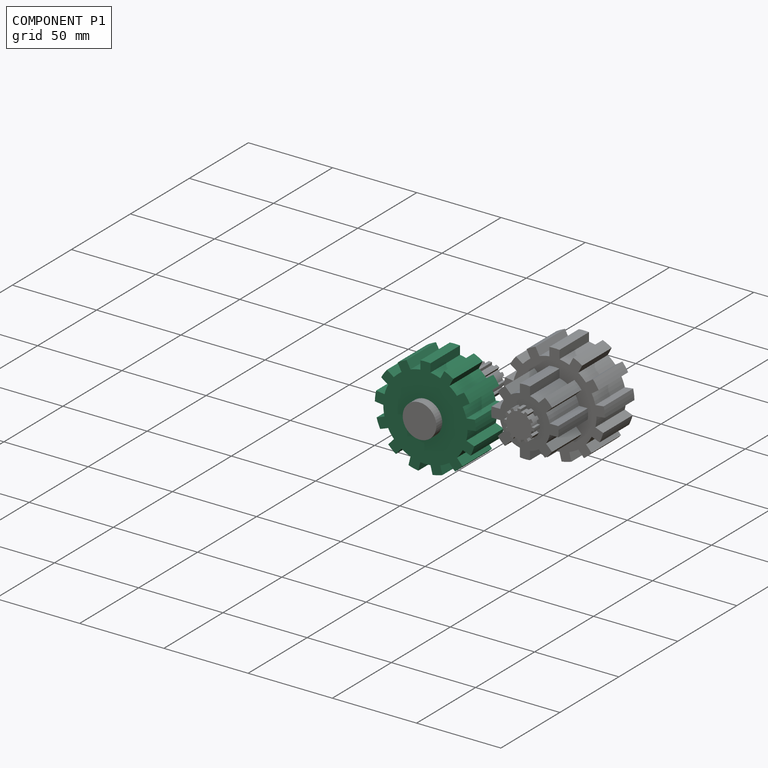
[diagram: component P1 — assembled]
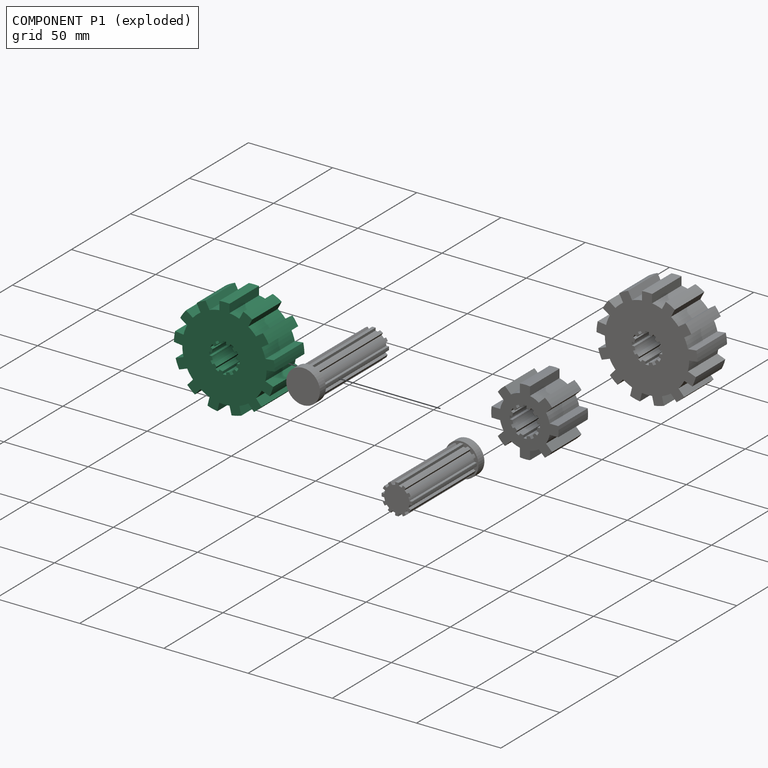
[diagram: component P1 — exploded]
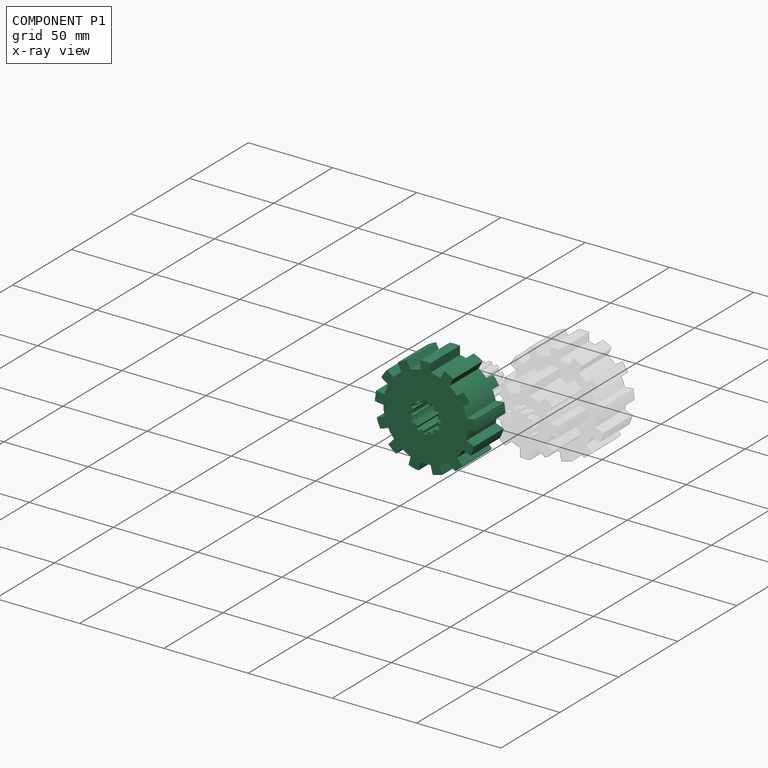
[diagram: component P1 — x-ray view]
COMPONENT P1 — same part as P0 (CADFS 00593385); its construction recipe is shown at P0.
Held by: FASTENED mate "Fastened 1" to P2.
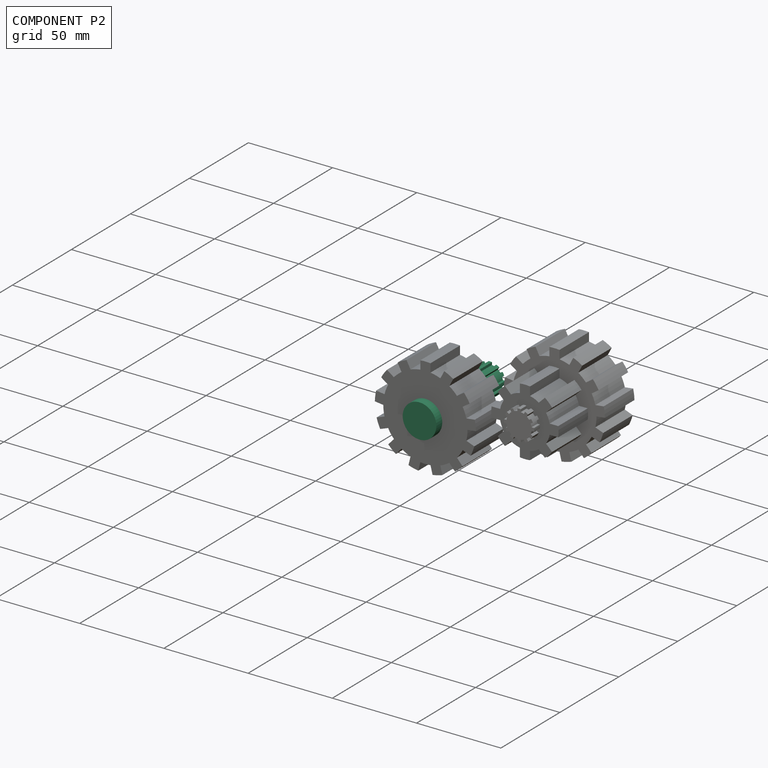
[diagram: component P2 — assembled]
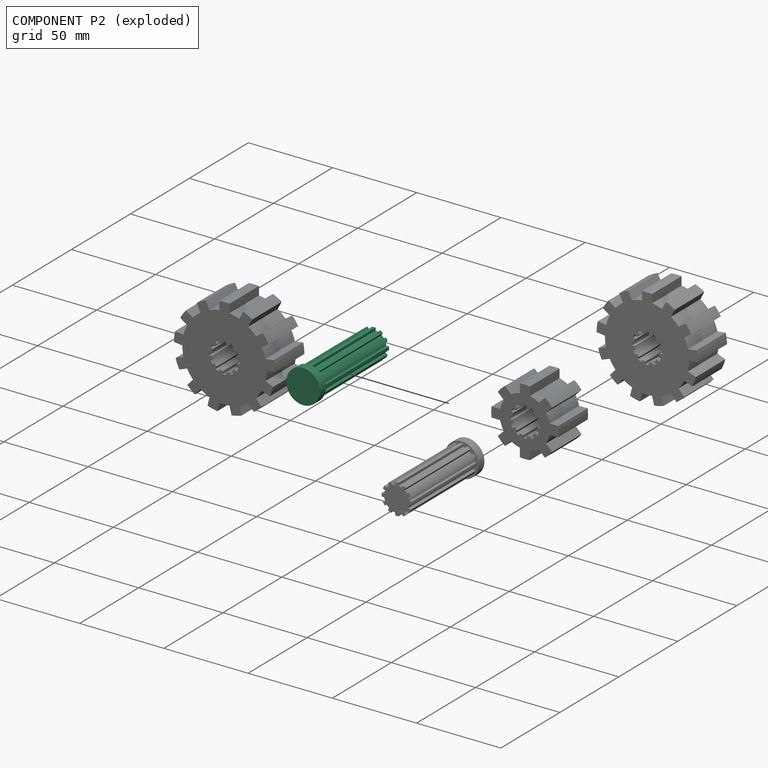
[diagram: component P2 — exploded]
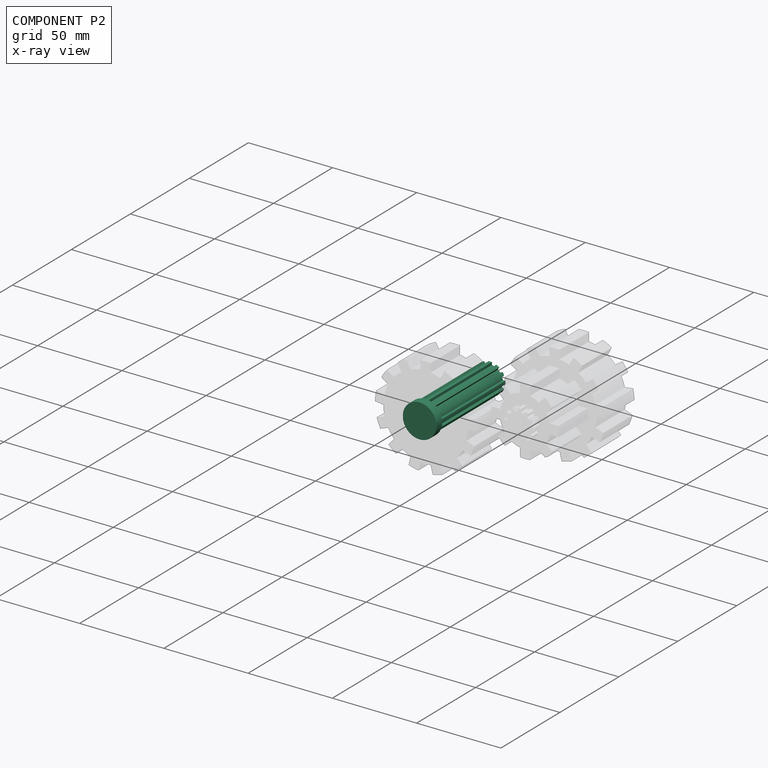
[diagram: component P2 — x-ray view]
COMPONENT P2 — recipe-attached (CADFS 00593384, mesh-verified: the recipe's output STEP matches this component's geometry to below the mesh-comparison resolution (tessellation chordal tolerance ~0.0995 mm)).
Held by: FASTENED mate "Fastened 1" to P1.
Construction recipe (FeatureScript — the CAD program that rebuilds this solid; sketch coordinates are in the units given by the * unit suffixes, e.g. mm):

FeatureScript 1511;
import(path : "onshape/std/geometry.fs", version : "1511.0");
import(path : "onshape/std/common.fs", version : "1511.0");
const mm = millimeter;
const VERTEX = EntityType.VERTEX;
const EDGE = EntityType.EDGE;
const FACE = EntityType.FACE;
const BODY = EntityType.BODY;
function v(x, y){return vector(x, y);}
function OD(order){return orderDisambiguation(order);}
function OSD(set){return originalSetDisambiguation(set);}
function TD(topology){return topologyDisambiguation(topology);}
function TDD(query){return trueDependencyDisambiguation(query);}
function sQuery(a, b, c) {return sketchEntityQuery(a, b, c);}

annotation { "Feature Type Name" : "Feature", "Feature Type Description" : "" }
export const myFeature = defineFeature(function(context is Context, id is Id, definition is map)
    precondition{}
    {
        {
            var Q0;
            Q0=qCreatedBy(makeId("Front.planeOp"),FACE);
            var sketch = newSketch(context, id + "F0", { "sketchPlane" : qUnion([Q0])});
            skCircle(sketch, "E0", {"center": v(0, 0) * mm, "radius": 10 * mm});
            skArc(sketch, "E1", {"start": v(1, 8.94) * mm, "mid": v(0, 9) * mm, "end": v(-1, 8.94) * mm});
            skCircle(sketch, "E2", {"center": v(0, 0) * mm, "radius": 7.5 * mm});
            skLineSegment(sketch, "E3", {"start": v(-1, 8.94) * mm, "end": v(-1, 7.43) * mm});
            skLineSegment(sketch, "E4", {"start": v(1, 7.43) * mm, "end": v(1, 8.94) * mm});
            skLineSegment(sketch, "E5.1.0", {"start": v(-5.34, 7.25) * mm, "end": v(-4.58, 5.94) * mm});
            skArc(sketch, "E5.1.1", {"start": v(-3.6, 8.25) * mm, "mid": v(-4.5, 7.8) * mm, "end": v(-5.34, 7.25) * mm});
            skLineSegment(sketch, "E5.1.2", {"start": v(-2.85, 6.94) * mm, "end": v(-3.6, 8.25) * mm});
            skLineSegment(sketch, "E5.2.0", {"start": v(-8.25, 3.6) * mm, "end": v(-6.94, 2.85) * mm});
            skArc(sketch, "E5.2.1", {"start": v(-7.25, 5.34) * mm, "mid": v(-7.8, 4.5) * mm, "end": v(-8.25, 3.6) * mm});
            skLineSegment(sketch, "E5.2.2", {"start": v(-5.94, 4.58) * mm, "end": v(-7.25, 5.34) * mm});
            skLineSegment(sketch, "E5.3.0", {"start": v(-8.94, -1) * mm, "end": v(-7.43, -1) * mm});
            skArc(sketch, "E5.3.1", {"start": v(-8.94, 1) * mm, "mid": v(-9, 0) * mm, "end": v(-8.94, -1) * mm});
            skLineSegment(sketch, "E5.3.2", {"start": v(-7.43, 1) * mm, "end": v(-8.94, 1) * mm});
            skLineSegment(sketch, "E5.4.0", {"start": v(-7.25, -5.34) * mm, "end": v(-5.94, -4.58) * mm});
            skArc(sketch, "E5.4.1", {"start": v(-8.25, -3.6) * mm, "mid": v(-7.8, -4.5) * mm, "end": v(-7.25, -5.34) * mm});
            skLineSegment(sketch, "E5.4.2", {"start": v(-6.94, -2.85) * mm, "end": v(-8.25, -3.6) * mm});
            skLineSegment(sketch, "E5.5.0", {"start": v(-3.6, -8.25) * mm, "end": v(-2.85, -6.94) * mm});
            skArc(sketch, "E5.5.1", {"start": v(-5.34, -7.25) * mm, "mid": v(-4.5, -7.8) * mm, "end": v(-3.6, -8.25) * mm});
            skLineSegment(sketch, "E5.5.2", {"start": v(-4.58, -5.94) * mm, "end": v(-5.34, -7.25) * mm});
            skLineSegment(sketch, "E5.6.0", {"start": v(1, -8.94) * mm, "end": v(1, -7.43) * mm});
            skArc(sketch, "E5.6.1", {"start": v(-1, -8.94) * mm, "mid": v(0, -9) * mm, "end": v(1, -8.94) * mm});
            skLineSegment(sketch, "E5.6.2", {"start": v(-1, -7.43) * mm, "end": v(-1, -8.94) * mm});
            skLineSegment(sketch, "E5.7.0", {"start": v(5.34, -7.25) * mm, "end": v(4.58, -5.94) * mm});
            skArc(sketch, "E5.7.1", {"start": v(3.6, -8.25) * mm, "mid": v(4.5, -7.8) * mm, "end": v(5.34, -7.25) * mm});
            skLineSegment(sketch, "E5.7.2", {"start": v(2.85, -6.94) * mm, "end": v(3.6, -8.25) * mm});
            skLineSegment(sketch, "E5.8.0", {"start": v(8.25, -3.6) * mm, "end": v(6.94, -2.85) * mm});
            skArc(sketch, "E5.8.1", {"start": v(7.25, -5.34) * mm, "mid": v(7.8, -4.5) * mm, "end": v(8.25, -3.6) * mm});
            skLineSegment(sketch, "E5.8.2", {"start": v(5.94, -4.58) * mm, "end": v(7.25, -5.34) * mm});
            skLineSegment(sketch, "E5.9.0", {"start": v(8.94, 1) * mm, "end": v(7.43, 1) * mm});
            skArc(sketch, "E5.9.1", {"start": v(8.94, -1) * mm, "mid": v(9, 0) * mm, "end": v(8.94, 1) * mm});
            skLineSegment(sketch, "E5.9.2", {"start": v(7.43, -1) * mm, "end": v(8.94, -1) * mm});
            skLineSegment(sketch, "E5.10.0", {"start": v(7.25, 5.34) * mm, "end": v(5.94, 4.58) * mm});
            skArc(sketch, "E5.10.1", {"start": v(8.25, 3.6) * mm, "mid": v(7.8, 4.5) * mm, "end": v(7.25, 5.34) * mm});
            skLineSegment(sketch, "E5.10.2", {"start": v(6.94, 2.85) * mm, "end": v(8.25, 3.6) * mm});
            skLineSegment(sketch, "E5.11.0", {"start": v(3.6, 8.25) * mm, "end": v(2.85, 6.94) * mm});
            skArc(sketch, "E5.11.1", {"start": v(5.34, 7.25) * mm, "mid": v(4.5, 7.8) * mm, "end": v(3.6, 8.25) * mm});
            skLineSegment(sketch, "E5.11.2", {"start": v(4.58, 5.94) * mm, "end": v(5.34, 7.25) * mm});
            skSolve(sketch);
        }
        {
            var Q0;
            Q0=makeQuery(id+"F0.imprint","IMPRINT",FACE,{"disambiguationData":[TD([[makeQuery(id+"F0.imprint","IMPRINT",EDGE,{"derivedFrom":sQuery(id+"F0.wireOp",EDGE,"E1")}),1.0]])]});
            var Q1;
            {var subQ0=sQuery(id+"F0.wireOp",EDGE,"E5.11.0");Q1=makeQuery(id+"F0.imprint","IMPRINT",FACE,{"disambiguationData":[TD([[makeQuery(id+"F0.imprint","IMPRINT",EDGE,{"derivedFrom":subQ0}),1.0]])]});}
            var Q2;
            {var subQ0=sQuery(id+"F0.wireOp",EDGE,"E5.10.0");Q2=makeQuery(id+"F0.imprint","IMPRINT",FACE,{"disambiguationData":[TD([[makeQuery(id+"F0.imprint","IMPRINT",EDGE,{"derivedFrom":subQ0}),1.0]])]});}
            var Q3;
            {var subQ0=sQuery(id+"F0.wireOp",EDGE,"E5.9.0");Q3=makeQuery(id+"F0.imprint","IMPRINT",FACE,{"disambiguationData":[TD([[makeQuery(id+"F0.imprint","IMPRINT",EDGE,{"derivedFrom":subQ0}),1.0]])]});}
            var Q4;
            {var subQ0=sQuery(id+"F0.wireOp",EDGE,"E5.8.0");Q4=makeQuery(id+"F0.imprint","IMPRINT",FACE,{"disambiguationData":[TD([[makeQuery(id+"F0.imprint","IMPRINT",EDGE,{"derivedFrom":subQ0}),1.0]])]});}
            var Q5;
            {var subQ0=sQuery(id+"F0.wireOp",EDGE,"E5.7.0");Q5=makeQuery(id+"F0.imprint","IMPRINT",FACE,{"disambiguationData":[TD([[makeQuery(id+"F0.imprint","IMPRINT",EDGE,{"derivedFrom":subQ0}),1.0]])]});}
            var Q6;
            {var subQ0=sQuery(id+"F0.wireOp",EDGE,"E5.6.0");Q6=makeQuery(id+"F0.imprint","IMPRINT",FACE,{"disambiguationData":[TD([[makeQuery(id+"F0.imprint","IMPRINT",EDGE,{"derivedFrom":subQ0}),1.0]])]});}
            var Q7;
            {var subQ0=sQuery(id+"F0.wireOp",EDGE,"E5.5.0");Q7=makeQuery(id+"F0.imprint","IMPRINT",FACE,{"disambiguationData":[TD([[makeQuery(id+"F0.imprint","IMPRINT",EDGE,{"derivedFrom":subQ0}),1.0]])]});}
            var Q8;
            {var subQ0=sQuery(id+"F0.wireOp",EDGE,"E5.4.0");Q8=makeQuery(id+"F0.imprint","IMPRINT",FACE,{"disambiguationData":[TD([[makeQuery(id+"F0.imprint","IMPRINT",EDGE,{"derivedFrom":subQ0}),1.0]])]});}
            var Q9;
            {var subQ0=sQuery(id+"F0.wireOp",EDGE,"E5.3.0");Q9=makeQuery(id+"F0.imprint","IMPRINT",FACE,{"disambiguationData":[TD([[makeQuery(id+"F0.imprint","IMPRINT",EDGE,{"derivedFrom":subQ0}),1.0]])]});}
            var Q10;
            {var subQ0=sQuery(id+"F0.wireOp",EDGE,"E5.2.0");Q10=makeQuery(id+"F0.imprint","IMPRINT",FACE,{"disambiguationData":[TD([[makeQuery(id+"F0.imprint","IMPRINT",EDGE,{"derivedFrom":subQ0}),1.0]])]});}
            var Q11;
            {var subQ0=sQuery(id+"F0.wireOp",EDGE,"E5.1.0");Q11=makeQuery(id+"F0.imprint","IMPRINT",FACE,{"disambiguationData":[TD([[makeQuery(id+"F0.imprint","IMPRINT",EDGE,{"derivedFrom":subQ0}),1.0]])]});}
            var Q12;
            {var subQ0=sQuery(id+"F0.wireOp",EDGE,"E2");var subQ18=makeQuery(id+"F0.imprint","INTERSECT",VERTEX,{"derivedFrom":[subQ0,sQuery(id+"F0.wireOp",EDGE,"E5.9.0")]});Q12=makeQuery(id+"F0.imprint","IMPRINT",FACE,{"disambiguationData":[TD([[makeQuery(id+"F0.imprint","IMPRINT",EDGE,{"disambiguationData":[TD([[subQ18,-1.0]])],"derivedFrom":subQ0}),1.0]])]});}
            extrude(context, id + "F1", {"entities" : qUnion([Q0, Q1, Q2, Q3, Q4, Q5, Q6, Q7, Q8, Q9, Q10, Q11, Q12]), "depth" : 60 * mm, "offsetDistance" : 25 * mm});
        }
        {
            var Q0;
            Q0=makeQuery(id+"F0.imprint","IMPRINT",FACE,{"disambiguationData":[TD([[makeQuery(id+"F0.imprint","IMPRINT",EDGE,{"derivedFrom":sQuery(id+"F0.wireOp",EDGE,"E0")}),1.0]])]});
            var Q1;
            {var subQ0=sQuery(id+"F0.wireOp",EDGE,"E2");var subQ18=makeQuery(id+"F0.imprint","INTERSECT",VERTEX,{"derivedFrom":[subQ0,sQuery(id+"F0.wireOp",EDGE,"E5.9.0")]});Q1=makeQuery(id+"F0.imprint","IMPRINT",FACE,{"disambiguationData":[TD([[makeQuery(id+"F0.imprint","IMPRINT",EDGE,{"disambiguationData":[TD([[subQ18,-1.0]])],"derivedFrom":subQ0}),1.0]])]});}
            var Q2;
            {var subQ0=sQuery(id+"F0.wireOp",EDGE,"E5.6.0");Q2=makeQuery(id+"F0.imprint","IMPRINT",FACE,{"disambiguationData":[TD([[makeQuery(id+"F0.imprint","IMPRINT",EDGE,{"derivedFrom":subQ0}),1.0]])]});}
            var Q3;
            {var subQ0=sQuery(id+"F0.wireOp",EDGE,"E5.7.0");Q3=makeQuery(id+"F0.imprint","IMPRINT",FACE,{"disambiguationData":[TD([[makeQuery(id+"F0.imprint","IMPRINT",EDGE,{"derivedFrom":subQ0}),1.0]])]});}
            var Q4;
            {var subQ0=sQuery(id+"F0.wireOp",EDGE,"E5.8.0");Q4=makeQuery(id+"F0.imprint","IMPRINT",FACE,{"disambiguationData":[TD([[makeQuery(id+"F0.imprint","IMPRINT",EDGE,{"derivedFrom":subQ0}),1.0]])]});}
            var Q5;
            {var subQ0=sQuery(id+"F0.wireOp",EDGE,"E5.9.0");Q5=makeQuery(id+"F0.imprint","IMPRINT",FACE,{"disambiguationData":[TD([[makeQuery(id+"F0.imprint","IMPRINT",EDGE,{"derivedFrom":subQ0}),1.0]])]});}
            var Q6;
            {var subQ0=sQuery(id+"F0.wireOp",EDGE,"E5.10.0");Q6=makeQuery(id+"F0.imprint","IMPRINT",FACE,{"disambiguationData":[TD([[makeQuery(id+"F0.imprint","IMPRINT",EDGE,{"derivedFrom":subQ0}),1.0]])]});}
            var Q7;
            {var subQ0=sQuery(id+"F0.wireOp",EDGE,"E5.11.0");Q7=makeQuery(id+"F0.imprint","IMPRINT",FACE,{"disambiguationData":[TD([[makeQuery(id+"F0.imprint","IMPRINT",EDGE,{"derivedFrom":subQ0}),1.0]])]});}
            var Q8;
            Q8=makeQuery(id+"F0.imprint","IMPRINT",FACE,{"disambiguationData":[TD([[makeQuery(id+"F0.imprint","IMPRINT",EDGE,{"derivedFrom":sQuery(id+"F0.wireOp",EDGE,"E1")}),1.0]])]});
            var Q9;
            {var subQ0=sQuery(id+"F0.wireOp",EDGE,"E5.1.0");Q9=makeQuery(id+"F0.imprint","IMPRINT",FACE,{"disambiguationData":[TD([[makeQuery(id+"F0.imprint","IMPRINT",EDGE,{"derivedFrom":subQ0}),1.0]])]});}
            var Q10;
            {var subQ0=sQuery(id+"F0.wireOp",EDGE,"E5.2.0");Q10=makeQuery(id+"F0.imprint","IMPRINT",FACE,{"disambiguationData":[TD([[makeQuery(id+"F0.imprint","IMPRINT",EDGE,{"derivedFrom":subQ0}),1.0]])]});}
            var Q11;
            {var subQ0=sQuery(id+"F0.wireOp",EDGE,"E5.3.0");Q11=makeQuery(id+"F0.imprint","IMPRINT",FACE,{"disambiguationData":[TD([[makeQuery(id+"F0.imprint","IMPRINT",EDGE,{"derivedFrom":subQ0}),1.0]])]});}
            var Q12;
            {var subQ0=sQuery(id+"F0.wireOp",EDGE,"E5.4.0");Q12=makeQuery(id+"F0.imprint","IMPRINT",FACE,{"disambiguationData":[TD([[makeQuery(id+"F0.imprint","IMPRINT",EDGE,{"derivedFrom":subQ0}),1.0]])]});}
            var Q13;
            {var subQ0=sQuery(id+"F0.wireOp",EDGE,"E5.5.0");Q13=makeQuery(id+"F0.imprint","IMPRINT",FACE,{"disambiguationData":[TD([[makeQuery(id+"F0.imprint","IMPRINT",EDGE,{"derivedFrom":subQ0}),1.0]])]});}
            extrude(context, id + "F2", {"entities" : qUnion([Q0, Q1, Q2, Q3, Q4, Q5, Q6, Q7, Q8, Q9, Q10, Q11, Q12, Q13]), "operationType" : NewBodyOperationType.ADD, "depth" : 5 * mm, "offsetDistance" : 25 * mm});
        }
    });
PROVENANCE & LICENSES
Assembly (occurrences, transforms, mates, per-part STEP geometry): AutoMate dataset, Zenodo record 7776208, CC0.
Construction recipes: CADFS (HuggingFace VladPyatov/CADFS, CC-BY-4.0, layered over the ABC dataset), FeatureScript reconstruction programs keyed by ABC model id.
Join: ABC meta listings map ABC model id -> Onshape documentId; within a shared document, parts are matched by geometric signature (bounding-box dims + volume at 0.1% relative tolerance, exact B-rep face/solid counts).
Verification: 5 of this assembly's 5 components carry a recipe attachment, and every attachment is mesh-verified: the CADFS STEP and the AutoMate member STEP were compared as meshes in their shared local frame (symmetric sampled-point-to-mesh distance); worst across the 5 attachments: below the mesh-comparison resolution (tessellation chordal tolerance ~0.132 mm) on a 88 mm part.
Renders: orthographic iso camera (az 35 / el 25); the floor grid conveys scale (grid pitch printed in each image; no ruler). In the exploded view each component is displaced by its stored offset vector: the offsets alone carry the explosion direction (mate normal/axis signs are not orientation cues and do not encode it), and separation distances are assigned per mate-chain, not proportionally to assembly-order depth.
